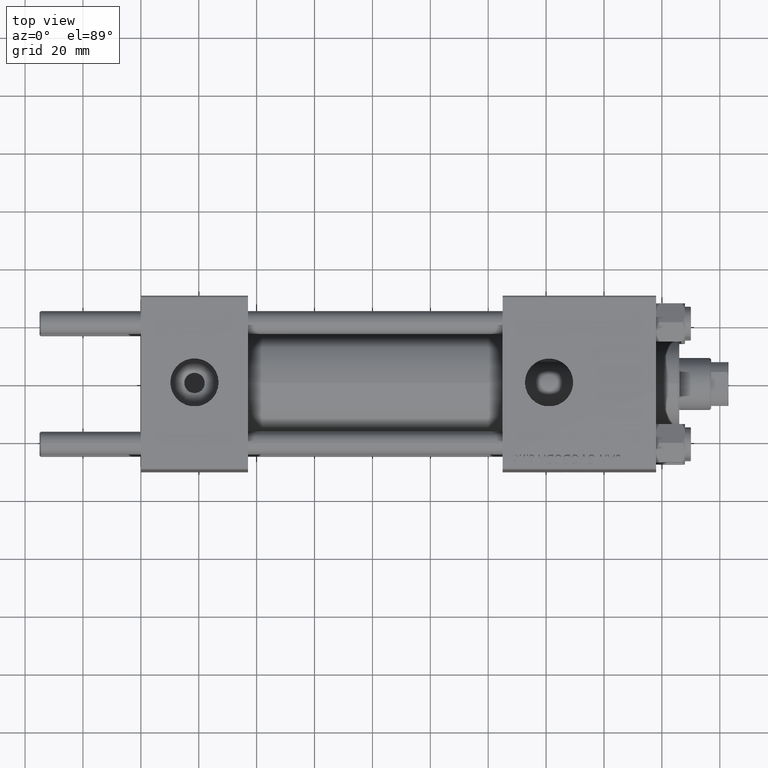
[diagram: clean part render]
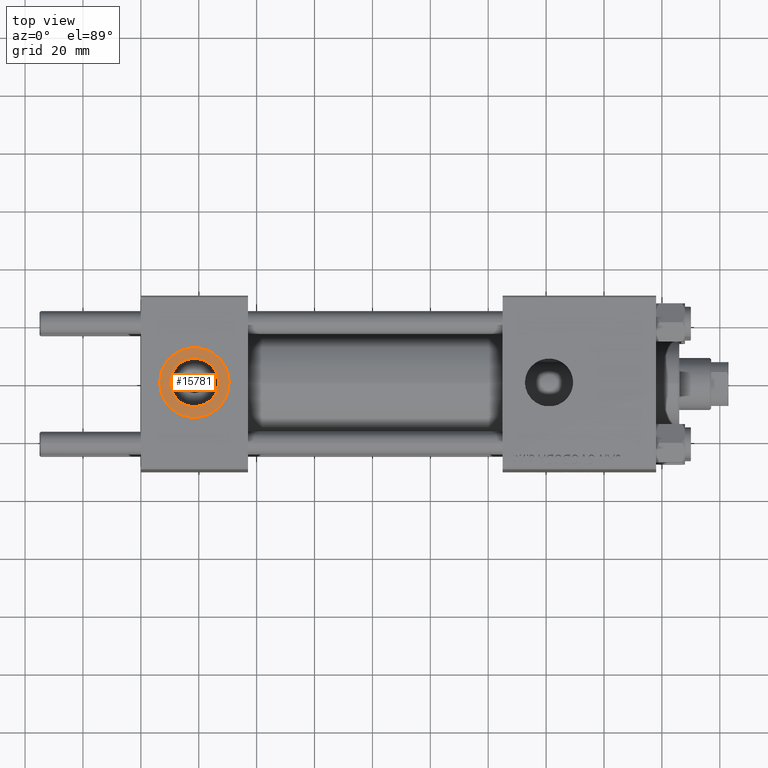
[diagram: same view with one face highlighted and labeled with its STEP entity id]
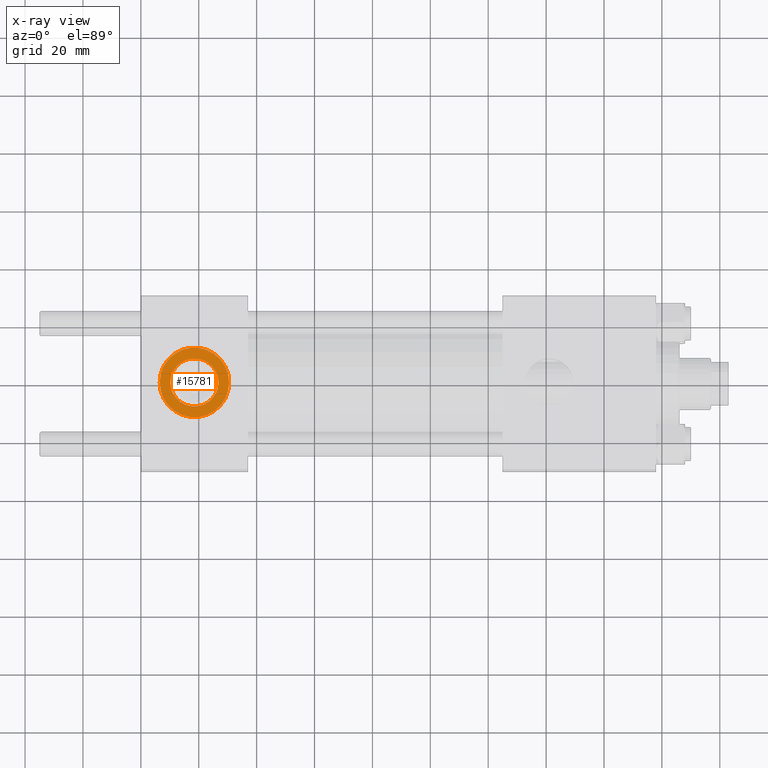
[diagram: x-ray of the same camera — body ghosted, the highlighted face saturated]
A machine part, top view. The second image highlights one B-rep face of the part: STEP entity #15781.
The next image is the same camera in x-ray: the body ghosted, the highlighted face saturated — about 0% of this face is hidden behind the body in this view.
In plain terms, the highlighted planar face has unit normal (0, 0, 1).
Its self-contained STEP definition (entity closure, byte-faithful):
#782 = AXIS2_PLACEMENT_3D ( 'NONE', #32837, #32585, #17929 ) ;
#2581 = DIRECTION ( 'NONE',  ( 1.000000000000000000, 0.000000000000000000, 0.000000000000000000 ) ) ;
#2917 = CARTESIAN_POINT ( 'NONE',  ( 18.50000000000000000, -3.469446951953614978E-15, 29.79999999999999716 ) ) ;
#3509 = CIRCLE ( 'NONE', #43013, 8.330000000000000071 ) ;
#3785 = CARTESIAN_POINT ( 'NONE',  ( 6.499999999999997335, -1.999870792976790833E-15, 29.79999999999999716 ) ) ;
#4232 = EDGE_CURVE ( 'NONE', #36318, #16373, #30930, .T. ) ;
#4764 = EDGE_LOOP ( 'NONE', ( #12421, #16121 ) ) ;
#6382 = CARTESIAN_POINT ( 'NONE',  ( 10.16999999999999638, -2.449316168263869821E-15, 29.79999999999999716 ) ) ;
#6990 = AXIS2_PLACEMENT_3D ( 'NONE', #48313, #10461, #32679 ) ;
#9327 = ORIENTED_EDGE ( 'NONE', *, *, #20357, .F. ) ;
#9734 = DIRECTION ( 'NONE',  ( 1.000000000000000000, 0.000000000000000000, 0.000000000000000000 ) ) ;
#10461 = DIRECTION ( 'NONE',  ( 0.000000000000000000, 0.000000000000000000, 1.000000000000000000 ) ) ;
#10469 = DIRECTION ( 'NONE',  ( 0.000000000000000000, 0.000000000000000000, 1.000000000000000000 ) ) ;
#12421 = ORIENTED_EDGE ( 'NONE', *, *, #48715, .T. ) ;
#15781 = ADVANCED_FACE ( 'NONE', ( #32925, #44767 ), #17282, .T. ) ;
#16121 = ORIENTED_EDGE ( 'NONE', *, *, #4232, .T. ) ;
#16373 = VERTEX_POINT ( 'NONE', #27291 ) ;
#17282 = PLANE ( 'NONE',  #6990 ) ;
#17608 = VERTEX_POINT ( 'NONE', #22972 ) ;
#17929 = DIRECTION ( 'NONE',  ( 1.000000000000000000, 0.000000000000000000, 0.000000000000000000 ) ) ;
#20357 = EDGE_CURVE ( 'NONE', #25906, #17608, #3509, .T. ) ;
#22893 = EDGE_LOOP ( 'NONE', ( #25311, #9327 ) ) ;
#22972 = CARTESIAN_POINT ( 'NONE',  ( 26.82999999999999829, -3.469446951953614978E-15, 29.79999999999999716 ) ) ;
#25311 = ORIENTED_EDGE ( 'NONE', *, *, #38675, .F. ) ;
#25906 = VERTEX_POINT ( 'NONE', #6382 ) ;
#27291 = CARTESIAN_POINT ( 'NONE',  ( 30.50000000000000000, -3.469446951953614978E-15, 29.79999999999999716 ) ) ;
#27349 = CIRCLE ( 'NONE', #782, 8.330000000000000071 ) ;
#28885 = DIRECTION ( 'NONE',  ( 1.000000000000000000, 0.000000000000000000, 0.000000000000000000 ) ) ;
#30930 = CIRCLE ( 'NONE', #33344, 12.00000000000000000 ) ;
#32585 = DIRECTION ( 'NONE',  ( 0.000000000000000000, 0.000000000000000000, 1.000000000000000000 ) ) ;
#32679 = DIRECTION ( 'NONE',  ( 1.000000000000000000, 0.000000000000000000, -0.000000000000000000 ) ) ;
#32837 = CARTESIAN_POINT ( 'NONE',  ( 18.50000000000000000, -3.469446951953614978E-15, 29.79999999999999716 ) ) ;
#32925 = FACE_BOUND ( 'NONE', #22893, .T. ) ;
#33344 = AXIS2_PLACEMENT_3D ( 'NONE', #36942, #36695, #28885 ) ;
#33582 = DIRECTION ( 'NONE',  ( 0.000000000000000000, 0.000000000000000000, 1.000000000000000000 ) ) ;
#34805 = CIRCLE ( 'NONE', #40447, 12.00000000000000000 ) ;
#36318 = VERTEX_POINT ( 'NONE', #3785 ) ;
#36695 = DIRECTION ( 'NONE',  ( 0.000000000000000000, 0.000000000000000000, 1.000000000000000000 ) ) ;
#36942 = CARTESIAN_POINT ( 'NONE',  ( 18.50000000000000000, -3.469446951953614978E-15, 29.79999999999999716 ) ) ;
#38675 = EDGE_CURVE ( 'NONE', #17608, #25906, #27349, .T. ) ;
#40447 = AXIS2_PLACEMENT_3D ( 'NONE', #2917, #10469, #9734 ) ;
#43013 = AXIS2_PLACEMENT_3D ( 'NONE', #48973, #33582, #2581 ) ;
#44767 = FACE_OUTER_BOUND ( 'NONE', #4764, .T. ) ;
#48313 = CARTESIAN_POINT ( 'NONE',  ( 18.50000000000000000, -3.469446951953614978E-15, 29.79999999999999716 ) ) ;
#48715 = EDGE_CURVE ( 'NONE', #16373, #36318, #34805, .T. ) ;
#48973 = CARTESIAN_POINT ( 'NONE',  ( 18.50000000000000000, -3.469446951953614978E-15, 29.79999999999999716 ) ) ;